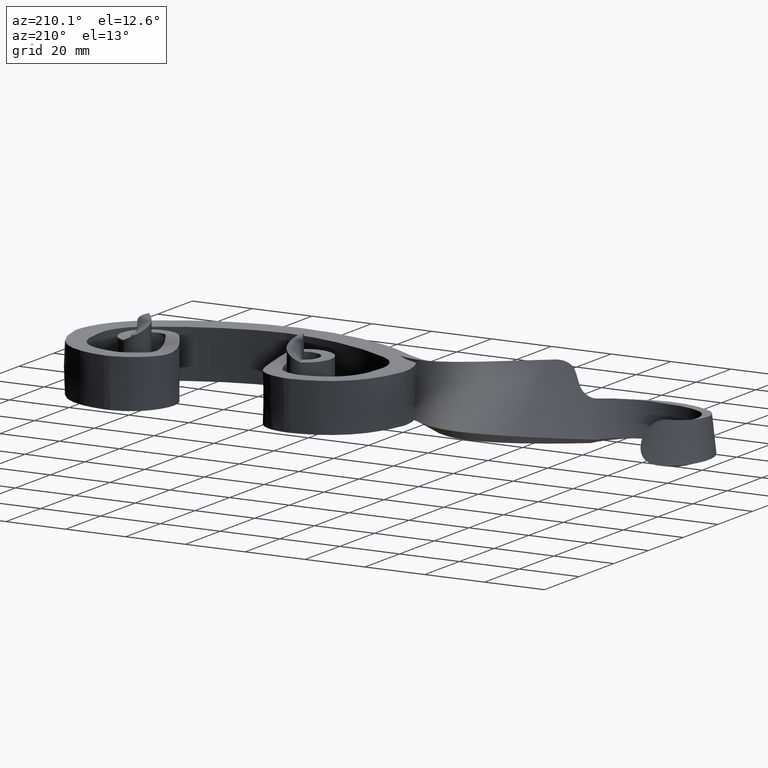
[diagram: clean part render]
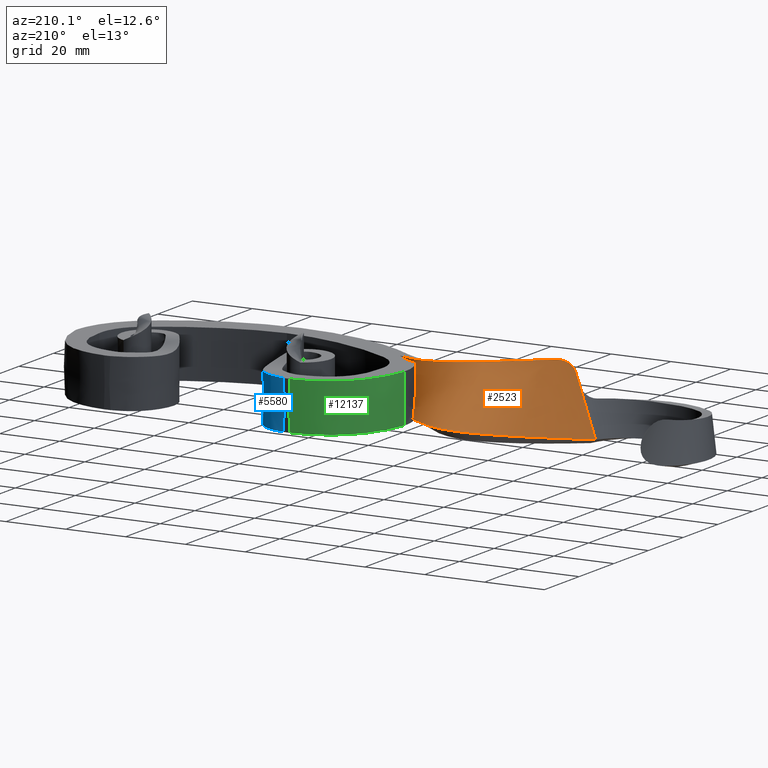
[diagram: same view with three faces highlighted in distinct colors, each labeled with its STEP entity id]
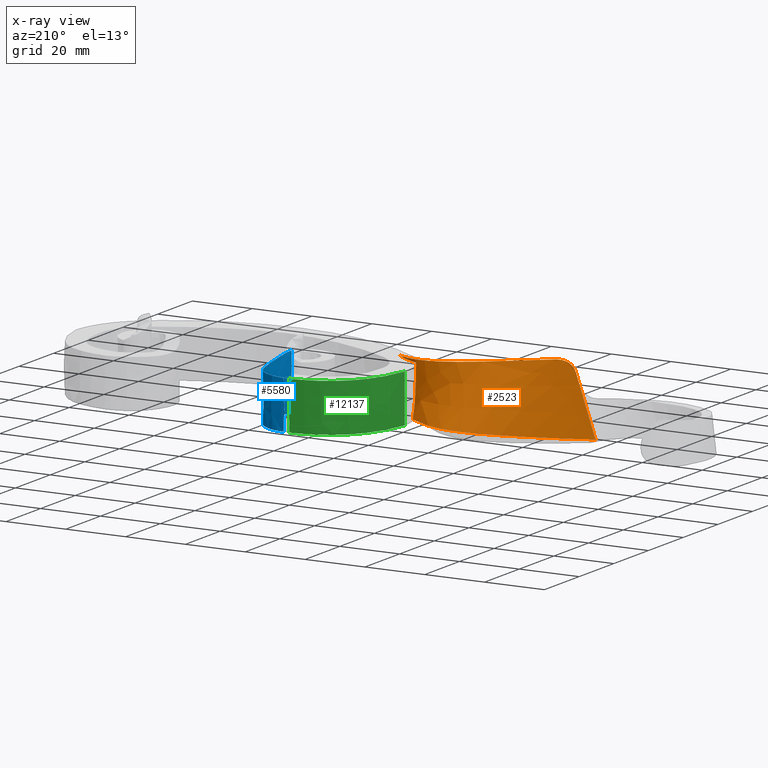
[diagram: x-ray of the same camera — body ghosted, the three highlighted faces saturated]
A machine part, auxiliary view with three faces highlighted in distinct colors.
The next image is the same camera in x-ray (body ghosted, the three faces saturated) — at least one of them is partly hidden behind the body in this view.
Their STEP definitions:

[orange] entity #2523 — the highlighted face is a freeform B-spline surface patch.
#124 = CARTESIAN_POINT ( 'NONE',  ( -96.42945539798942889, -16.39351033682261516, 11.58527722436418728 ) ) ;
#229 = CARTESIAN_POINT ( 'NONE',  ( -60.30284981061817717, 4.580316353366425730, -6.944135658084808149 ) ) ;
#379 = CARTESIAN_POINT ( 'NONE',  ( -97.38119587446179537, -16.53339040501844437, 11.19078506641155890 ) ) ;
#404 = VECTOR ( 'NONE', #7878, 1000.000000000000227 ) ;
#773 = EDGE_CURVE ( 'NONE', #8386, #11443, #2545, .T. ) ;
#813 = LINE ( 'NONE', #6575, #404 ) ;
#850 = CARTESIAN_POINT ( 'NONE',  ( -46.73785010216804636, -7.966515708669909657, -7.952089162686259094 ) ) ;
#1070 = CARTESIAN_POINT ( 'NONE',  ( -43.20000000000004547, -12.59999999999998188, 2.666666666666666963 ) ) ;
#1131 = CARTESIAN_POINT ( 'NONE',  ( -48.87190978856628476, -8.409467053666780600, 7.999999999999991118 ) ) ;
#1350 = ORIENTED_EDGE ( 'NONE', *, *, #13429, .T. ) ;
#1369 = CARTESIAN_POINT ( 'NONE',  ( -99.81559130728024343, -16.41421027396264165, 8.798950498308142798 ) ) ;
#1937 = CARTESIAN_POINT ( 'NONE',  ( -48.16334773916194223, -8.270553947581591459, 8.575249176435139731 ) ) ;
#2003 = B_SPLINE_CURVE_WITH_KNOTS ( 'NONE', 3,
 ( #6149, #2507, #8783, #1131, #11198, #3780 ),
 .UNSPECIFIED., .F., .F.,
 ( 4, 2, 4 ),
 ( 0.000000000000000000, 0.005267979673986252116, 0.01053595934797250423 ),
 .UNSPECIFIED. ) ;
#2122 = CARTESIAN_POINT ( 'NONE',  ( -43.20000000000004547, -12.59999999999998188, 8.000000000000001776 ) ) ;
#2178 = CARTESIAN_POINT ( 'NONE',  ( -47.21301598116602349, -8.067861788307137516, -2.442976382979125116 ) ) ;
#2196 = CARTESIAN_POINT ( 'NONE',  ( -52.01960458180641211, -6.826013384664912031, 8.000000000000001776 ) ) ;
#2229 = CARTESIAN_POINT ( 'NONE',  ( -103.5798565077442106, -14.51986774259186141, 1.500000000000005551 ) ) ;
#2237 = CARTESIAN_POINT ( 'NONE',  ( -59.77630384729079083, -2.689953150725865161, 9.711924247133840282 ) ) ;
#2255 = CARTESIAN_POINT ( 'NONE',  ( -52.16700212521642754, -6.550999182250500041, 6.635586703369498629 ) ) ;
#2307 = CARTESIAN_POINT ( 'NONE',  ( -53.23895162014624560, -4.208822906094227712, -1.341556095495149981 ) ) ;
#2340 = CARTESIAN_POINT ( 'NONE',  ( -79.68433725574115556, 11.95888866600640377, 0.8680365620560641648 ) ) ;
#2507 = CARTESIAN_POINT ( 'NONE',  ( -44.54270331952313455, -11.42878212614214739, 7.999999999999998224 ) ) ;
#2523 = ADVANCED_FACE ( 'NONE', ( #15369 ), #7280, .T. ) ;
#2545 = B_SPLINE_CURVE_WITH_KNOTS ( 'NONE', 3,
 ( #9547, #5681, #13256, #8201, #1937, #11833 ),
 .UNSPECIFIED., .F., .F.,
 ( 4, 1, 1, 4 ),
 ( 0.1027887074695420649, 0.4648624492864277258, 0.7523890925903812255, 1.000000000000000222 ),
 .UNSPECIFIED. ) ;
#3265 = VECTOR ( 'NONE', #6341, 1000.000000000000000 ) ;
#3403 = CARTESIAN_POINT ( 'NONE',  ( -105.4408257040114734, -13.58334682540844796, -2.108439182435152492 ) ) ;
#3568 = CARTESIAN_POINT ( 'NONE',  ( -99.13469418647991915, 2.436168240074292335, -7.261762458051583380 ) ) ;
#3581 = CARTESIAN_POINT ( 'NONE',  ( -53.44210677558404399, -3.685375864040905114, -2.619153823009113147 ) ) ;
#3662 = LINE ( 'NONE', #2229, #3265 ) ;
#3780 = CARTESIAN_POINT ( 'NONE',  ( -52.01960458180641211, -6.826013384664912031, 8.000000000000001776 ) ) ;
#4180 = CARTESIAN_POINT ( 'NONE',  ( -54.51115490866757796, -0.8575813848620177371, -7.486440096859543480 ) ) ;
#4183 = CARTESIAN_POINT ( 'NONE',  ( -94.42956560075336370, -15.95869601045208164, 11.94362855188764172 ) ) ;
#4667 = CARTESIAN_POINT ( 'NONE',  ( -54.37468783274965745, -1.232177667856706238, -7.840201177061357996 ) ) ;
#4838 = CARTESIAN_POINT ( 'NONE',  ( -101.7188873114768768, -15.45638865977524823, 5.108439182435162706 ) ) ;
#4888 = CARTESIAN_POINT ( 'NONE',  ( -79.50995481505974283, 0.1631575072818398087, 5.724260418491499358 ) ) ;
#5025 = EDGE_CURVE ( 'NONE', #14144, #15928, #9477, .T. ) ;
#5050 = B_SPLINE_CURVE_WITH_KNOTS ( 'NONE', 3,
 ( #14160, #4180, #229, #14109, #12914, #11493 ),
 .UNSPECIFIED., .F., .F.,
 ( 4, 1, 1, 4 ),
 ( 0.2326226089176657019, 0.2476109074096188023, 0.5351375507135722742, 1.000000000000000000 ),
 .UNSPECIFIED. ) ;
#5450 = CARTESIAN_POINT ( 'NONE',  ( -95.43056932623073862, -16.19579900374900916, 11.82267192924704169 ) ) ;
#5501 = CARTESIAN_POINT ( 'NONE',  ( -98.52157530770016081, -16.60876605946225837, 10.40742702793063579 ) ) ;
#5508 = EDGE_LOOP ( 'NONE', ( #6316, #11978, #13876, #1350, #7565, #9035, #14557 ) ) ;
#5681 = CARTESIAN_POINT ( 'NONE',  ( -87.41424391914146952, -13.58663449085724118, 11.36713642963850113 ) ) ;
#5980 = CARTESIAN_POINT ( 'NONE',  ( -79.33557237437835852, -11.63257365144272626, 10.58048427492693655 ) ) ;
#6033 = CARTESIAN_POINT ( 'NONE',  ( -96.27033501295898077, -3.183361264182539951, -0.9571267822595679320 ) ) ;
#6049 = CARTESIAN_POINT ( 'NONE',  ( -52.32554538642312281, -6.243397489025960923, 5.281287806678254704 ) ) ;
#6084 = CARTESIAN_POINT ( 'NONE',  ( -79.85871969642259671, 23.75461982473096612, -3.988187294379372361 ) ) ;
#6149 = CARTESIAN_POINT ( 'NONE',  ( -43.20000000000004547, -12.59999999999998188, 8.000000000000001776 ) ) ;
#6316 = ORIENTED_EDGE ( 'NONE', *, *, #9961, .F. ) ;
#6341 = DIRECTION ( 'NONE',  ( -0.4466326071041515910, 0.2247650201240159185, -0.8660254037844382635 ) ) ;
#6575 = CARTESIAN_POINT ( 'NONE',  ( -97.99694891894228022, -17.32943049414204495, 12.32531754730547746 ) ) ;
#6712 = CARTESIAN_POINT ( 'NONE',  ( -93.76571213650090897, -15.77140740652166429, 11.94134714664680530 ) ) ;
#6767 = CARTESIAN_POINT ( 'NONE',  ( -99.33972898970260701, -16.53935132552984655, 9.509243000274341995 ) ) ;
#7280 = B_SPLINE_SURFACE_WITH_KNOTS ( 'NONE', 3, 3, ( 
 ( #2122, #13592, #2237, #5980, #15953, #8613 ),
 ( #1070, #10930, #11026, #4888, #9887, #4838 ),
 ( #13541, #2178, #9788, #2340, #6033, #3403 ),
 ( #14749, #850, #4667, #6084, #3568, #8445 ) ),
 .UNSPECIFIED., .F., .F., .F.,
 ( 4, 4 ),
 ( 4, 1, 1, 4 ),
 ( 0.000000000000000000, 1.000000000000000000 ),
 ( 0.000000000000000000, 0.2476109074096188023, 0.5351375507135722742, 1.000000000000000000 ),
 .UNSPECIFIED. ) ;
#7357 = CARTESIAN_POINT ( 'NONE',  ( -52.66733715304216901, -5.535800705549701384, 2.600488850753574166 ) ) ;
#7462 = CARTESIAN_POINT ( 'NONE',  ( -54.22862303936197748, -1.122450745119980775, -7.511871344169120057 ) ) ;
#7565 = ORIENTED_EDGE ( 'NONE', *, *, #5025, .T. ) ;
#7868 = CARTESIAN_POINT ( 'NONE',  ( -43.20000000000004547, -12.59999999999998188, 8.000000000000001776 ) ) ;
#7878 = DIRECTION ( 'NONE',  ( -0.4466326071041515910, 0.2247650201240159185, -0.8660254037844381525 ) ) ;
#7962 = CARTESIAN_POINT ( 'NONE',  ( -93.10921384712040094, -15.54558565433239536, 11.88199577456095746 ) ) ;
#8013 = CARTESIAN_POINT ( 'NONE',  ( -97.68781268915081739, -16.56600916673594526, 11.01929040283303785 ) ) ;
#8073 = CARTESIAN_POINT ( 'NONE',  ( -99.63908597995580863, -16.47430482085297854, 9.091003751560684520 ) ) ;
#8201 = CARTESIAN_POINT ( 'NONE',  ( -59.77630384729079083, -2.689953150725865161, 9.711924247133840282 ) ) ;
#8239 = VERTEX_POINT ( 'NONE', #10474 ) ;
#8363 = CARTESIAN_POINT ( 'NONE',  ( -99.97185944921960754, -16.33556932498339620, 8.495944899144340923 ) ) ;
#8386 = VERTEX_POINT ( 'NONE', #8441 ) ;
#8441 = CARTESIAN_POINT ( 'NONE',  ( -93.10921384712040094, -15.54558565433239536, 11.88199577456095746 ) ) ;
#8445 = CARTESIAN_POINT ( 'NONE',  ( -109.1627640965460699, -11.71030499104165123, -9.325317547305468580 ) ) ;
#8613 = CARTESIAN_POINT ( 'NONE',  ( -97.99694891894228022, -17.32943049414204495, 12.32531754730547568 ) ) ;
#8626 = CARTESIAN_POINT ( 'NONE',  ( -54.04687592134685303, -1.842298294909350043, -6.323743699497341275 ) ) ;
#8660 = EDGE_CURVE ( 'NONE', #15928, #10676, #5050, .T. ) ;
#8783 = CARTESIAN_POINT ( 'NONE',  ( -45.94134815560607166, -10.34940871799076412, 7.999999999999992895 ) ) ;
#8871 = VERTEX_POINT ( 'NONE', #8363 ) ;
#8926 = CARTESIAN_POINT ( 'NONE',  ( -99.01035676908146854, -16.58364999050104416, 9.910097603880684503 ) ) ;
#9035 = ORIENTED_EDGE ( 'NONE', *, *, #8660, .T. ) ;
#9243 = CARTESIAN_POINT ( 'NONE',  ( -96.75265606500921933, -16.44707461682099847, 11.47293152855146126 ) ) ;
#9363 = CARTESIAN_POINT ( 'NONE',  ( -98.25637185349630442, -16.60341919721172843, 10.62813686510819799 ) ) ;
#9477 = B_SPLINE_CURVE_WITH_KNOTS ( 'NONE', 3,
 ( #2196, #2255, #6049, #7357, #14825, #2307, #3581, #16130, #8626, #7462 ),
 .UNSPECIFIED., .F., .F.,
 ( 4, 2, 2, 2, 4 ),
 ( 1.984394192489694638E-15, 0.004190384079317669742, 0.008380768158633356696, 0.01257115223794904278, 0.01676153631726472887 ),
 .UNSPECIFIED. ) ;
#9547 = CARTESIAN_POINT ( 'NONE',  ( -93.10921384712040094, -15.54558565433239536, 11.88199577456095746 ) ) ;
#9788 = CARTESIAN_POINT ( 'NONE',  ( -56.17522650426337094, -1.718102828813093286, -1.989492702329626939 ) ) ;
#9887 = CARTESIAN_POINT ( 'NONE',  ( -93.40597583943804239, -8.802890768439375790, 5.347508893532447516 ) ) ;
#9961 = EDGE_CURVE ( 'NONE', #8871, #8239, #813, .T. ) ;
#10197 = CARTESIAN_POINT ( 'NONE',  ( -95.76777578725202034, -16.26783290341005284, 11.76049916149719543 ) ) ;
#10474 = CARTESIAN_POINT ( 'NONE',  ( -101.5476473601984679, -15.54256407662330020, 5.440475280093712840 ) ) ;
#10596 = EDGE_CURVE ( 'NONE', #8871, #8386, #11794, .T. ) ;
#10676 = VERTEX_POINT ( 'NONE', #13900 ) ;
#10930 = CARTESIAN_POINT ( 'NONE',  ( -47.68818186016397931, -8.169207867944363599, 3.066136396728007529 ) ) ;
#11026 = CARTESIAN_POINT ( 'NONE',  ( -57.97576517577709154, -2.204027989769480111, 3.861215772402106339 ) ) ;
#11198 = CARTESIAN_POINT ( 'NONE',  ( -50.40363320800514657, -7.548581311508728575, 7.999999999999992895 ) ) ;
#11436 = CARTESIAN_POINT ( 'NONE',  ( -98.89145496435713767, -16.59298604828457968, 10.03938429272467658 ) ) ;
#11443 = VERTEX_POINT ( 'NONE', #7868 ) ;
#11493 = CARTESIAN_POINT ( 'NONE',  ( -109.1627640965460984, -11.71030499104166367, -9.325317547305472132 ) ) ;
#11794 = B_SPLINE_CURVE_WITH_KNOTS ( 'NONE', 3,
 ( #15474, #1369, #8073, #6767, #13076, #8926, #11436, #5501, #9363, #8013, #379, #9243, #124, #10197, #5450, #4183, #6712, #7962 ),
 .UNSPECIFIED., .F., .F.,
 ( 4, 2, 2, 2, 2, 2, 2, 2, 4 ),
 ( 0.000000000000000000, 0.001036697543149801880, 0.001555046314724700760, 0.002073395086299599857, 0.003110092629449397184, 0.004146790172599194510, 0.005183487715748992704, 0.006220185258898790898, 0.008293580345198347387 ),
 .UNSPECIFIED. ) ;
#11833 = CARTESIAN_POINT ( 'NONE',  ( -43.20000000000004547, -12.59999999999998188, 8.000000000000001776 ) ) ;
#11978 = ORIENTED_EDGE ( 'NONE', *, *, #10596, .T. ) ;
#12100 = CARTESIAN_POINT ( 'NONE',  ( -52.01960458180641211, -6.826013384664912031, 8.000000000000001776 ) ) ;
#12914 = CARTESIAN_POINT ( 'NONE',  ( -99.13469418647991915, 2.436168240074292335, -7.261762458051583380 ) ) ;
#13076 = CARTESIAN_POINT ( 'NONE',  ( -99.23415053166914390, -16.55683377843816118, 9.645333910594430904 ) ) ;
#13205 = CARTESIAN_POINT ( 'NONE',  ( -54.22862303936197748, -1.122450745119980775, -7.511871344169120057 ) ) ;
#13256 = CARTESIAN_POINT ( 'NONE',  ( -77.32510044342933497, -10.71337324878341057, 10.49120611231037437 ) ) ;
#13429 = EDGE_CURVE ( 'NONE', #11443, #14144, #2003, .T. ) ;
#13541 = CARTESIAN_POINT ( 'NONE',  ( -43.20000000000004547, -12.59999999999998188, -2.666666666666666963 ) ) ;
#13592 = CARTESIAN_POINT ( 'NONE',  ( -48.16334773916194223, -8.270553947581591459, 8.575249176435139731 ) ) ;
#13750 = EDGE_CURVE ( 'NONE', #8239, #10676, #3662, .T. ) ;
#13876 = ORIENTED_EDGE ( 'NONE', *, *, #773, .T. ) ;
#13900 = CARTESIAN_POINT ( 'NONE',  ( -109.1627640965460984, -11.71030499104166367, -9.325317547305472132 ) ) ;
#14109 = CARTESIAN_POINT ( 'NONE',  ( -79.85871969642259671, 23.75461982473096612, -3.988187294379372361 ) ) ;
#14144 = VERTEX_POINT ( 'NONE', #12100 ) ;
#14160 = CARTESIAN_POINT ( 'NONE',  ( -54.22862303936197748, -1.122450745119980775, -7.511871344169120057 ) ) ;
#14557 = ORIENTED_EDGE ( 'NONE', *, *, #13750, .F. ) ;
#14749 = CARTESIAN_POINT ( 'NONE',  ( -43.20000000000004547, -12.59999999999998188, -8.000000000000001776 ) ) ;
#14825 = CARTESIAN_POINT ( 'NONE',  ( -52.85093877976130727, -5.135362787510009852, 1.273434558906509251 ) ) ;
#15369 = FACE_OUTER_BOUND ( 'NONE', #5508, .T. ) ;
#15474 = CARTESIAN_POINT ( 'NONE',  ( -99.97185944921960754, -16.33556932498339620, 8.495944899144340923 ) ) ;
#15928 = VERTEX_POINT ( 'NONE', #13205 ) ;
#15953 = CARTESIAN_POINT ( 'NONE',  ( -90.54161666591708979, -14.42242027269620941, 11.65214456932445941 ) ) ;
#16130 = CARTESIAN_POINT ( 'NONE',  ( -53.84621754838912011, -2.502379390871251275, -5.110349804807713170 ) ) ;

[blue] entity #5580 — the highlighted face is a freeform B-spline surface patch.
#3 = CARTESIAN_POINT ( 'NONE',  ( -28.89290561367777599, 29.87516013554578365, 8.002349178277858854 ) ) ;
#446 = CARTESIAN_POINT ( 'NONE',  ( -18.72888882741743544, 7.699313024482549395, -4.648799922479064151 ) ) ;
#555 = CARTESIAN_POINT ( 'NONE',  ( -18.72422799175656394, 7.706171780478507927, -6.324399678902200783 ) ) ;
#781 = CARTESIAN_POINT ( 'NONE',  ( -28.97673564985209893, 29.88636905704027669, 5.333748342863563252 ) ) ;
#844 = CARTESIAN_POINT ( 'NONE',  ( -29.16876859840612468, 29.91046570912915925, 2.670001176115872621 ) ) ;
#1043 = CARTESIAN_POINT ( 'NONE',  ( -25.73471352242961174, 29.60070611171889610, 8.000000000000000000 ) ) ;
#1196 = CARTESIAN_POINT ( 'NONE',  ( -16.73961644370582746, 10.48027603781926054, -8.000000000000000000 ) ) ;
#1926 = CARTESIAN_POINT ( 'NONE',  ( -25.16537474691240206, 29.37919276685122227, 8.017726132158569996 ) ) ;
#1944 = B_SPLINE_CURVE_WITH_KNOTS ( 'NONE', 3,
 ( #12202, #1926, #8190, #9535, #2045, #1985 ),
 .UNSPECIFIED., .F., .F.,
 ( 4, 1, 1, 4 ),
 ( 0.03000514511970519063, 0.3396135403017762622, 0.6883228818374371727, 0.9428364869920384805 ),
 .UNSPECIFIED. ) ;
#1985 = CARTESIAN_POINT ( 'NONE',  ( -17.78065603302911413, 9.119035019696790201, 10.20306469098768609 ) ) ;
#2005 = CARTESIAN_POINT ( 'NONE',  ( -29.11958532612128536, 29.90443980657783740, -3.332334736020014621 ) ) ;
#2045 = CARTESIAN_POINT ( 'NONE',  ( -16.44146902834796720, 11.35381396550807764, 9.096330356002789941 ) ) ;
#2059 = CARTESIAN_POINT ( 'NONE',  ( -29.16972404292043564, 29.91060843933430391, -2.666433874542968319 ) ) ;
#2287 = B_SPLINE_CURVE_WITH_KNOTS ( 'NONE', 3,
 ( #10153, #12220, #4709, #8772 ),
 .UNSPECIFIED., .F., .F.,
 ( 4, 4 ),
 ( 6.539240269058237277E-17, 0.001875440972876722678 ),
 .UNSPECIFIED. ) ;
#2315 = CARTESIAN_POINT ( 'NONE',  ( -16.73334642952841023, 10.39224701859270006, 9.460221386473230964 ) ) ;
#2365 = CARTESIAN_POINT ( 'NONE',  ( -19.12514575358263968, 27.18585110101665592, -2.592325139773082654 ) ) ;
#2417 = CARTESIAN_POINT ( 'NONE',  ( -19.12546496711554056, 27.19033275822348017, -8.000000000000000000 ) ) ;
#2522 = CARTESIAN_POINT ( 'NONE',  ( -30.00000000000001776, 29.99999999999998934, -2.666666666666666519 ) ) ;
#3397 = CARTESIAN_POINT ( 'NONE',  ( -29.27866248391200088, 29.92368384946222548, 0.6703702990637424586 ) ) ;
#3590 = CARTESIAN_POINT ( 'NONE',  ( -18.79999999999997584, 7.600000000000019185, 11.00000000000000178 ) ) ;
#3796 = CARTESIAN_POINT ( 'NONE',  ( -25.73471352242961174, 29.60070611171889610, -2.666666666666666519 ) ) ;
#4193 = EDGE_CURVE ( 'NONE', #10246, #14311, #15528, .T. ) ;
#4315 = EDGE_LOOP ( 'NONE', ( #8690, #11974, #11142, #5811, #10045 ) ) ;
#4543 = CARTESIAN_POINT ( 'NONE',  ( -29.27892877996910315, 29.92372046292448573, -0.6666001760160731315 ) ) ;
#4602 = CARTESIAN_POINT ( 'NONE',  ( -29.24903626202534213, 29.92018577814974734, 1.337287000408350135 ) ) ;
#4709 = CARTESIAN_POINT ( 'NONE',  ( -18.41081111783132940, 8.128045733690004937, 10.63748711643142286 ) ) ;
#4962 = CARTESIAN_POINT ( 'NONE',  ( -14.83991298797691094, 15.81350858939796566, -7.999999999999998224 ) ) ;
#5580 = ADVANCED_FACE ( 'NONE', ( #10101 ), #14018, .T. ) ;
#5589 = VERTEX_POINT ( 'NONE', #3 ) ;
#5811 = ORIENTED_EDGE ( 'NONE', *, *, #11760, .T. ) ;
#5861 = CARTESIAN_POINT ( 'NONE',  ( -28.89541291717526406, 29.87562163365635826, -6.663945527120946899 ) ) ;
#6040 = EDGE_CURVE ( 'NONE', #12804, #10246, #13927, .T. ) ;
#6269 = CARTESIAN_POINT ( 'NONE',  ( -30.00000000000001776, 29.99999999999998934, 2.666666666666666519 ) ) ;
#6780 = CARTESIAN_POINT ( 'NONE',  ( -18.77518518880183862, 7.633606448762522589, 10.77026146850863775 ) ) ;
#7254 = CARTESIAN_POINT ( 'NONE',  ( -16.71631783947801964, 10.54627493894000878, -8.000000000000000000 ) ) ;
#7307 = CARTESIAN_POINT ( 'NONE',  ( -14.85740231020177582, 15.85993736794336506, -7.999999999999998224 ) ) ;
#7366 = CARTESIAN_POINT ( 'NONE',  ( -19.12482654004973881, 27.18136944380982811, 2.815349720453834692 ) ) ;
#7471 = CARTESIAN_POINT ( 'NONE',  ( -16.73752643898002290, 10.45093303141040586, -2.179926204508923160 ) ) ;
#7701 = CARTESIAN_POINT ( 'NONE',  ( -18.71966440188703729, 7.712955228803216379, -8.000000000000000000 ) ) ;
#7973 = CARTESIAN_POINT ( 'NONE',  ( -18.74667845620063034, 7.673406434936078213, 1.607958308274084702 ) ) ;
#8090 = CARTESIAN_POINT ( 'NONE',  ( -18.71966440188703729, 7.712955228803216379, -8.000000000000000000 ) ) ;
#8190 = CARTESIAN_POINT ( 'NONE',  ( -18.99604618903281050, 26.83731418698118176, 8.193337772231329197 ) ) ;
#8380 = CARTESIAN_POINT ( 'NONE',  ( -28.89569971876204590, 29.87567134763981969, -8.000000000000000000 ) ) ;
#8407 = CARTESIAN_POINT ( 'NONE',  ( -28.89569971876204590, 29.87567134763981969, -8.000000000000000000 ) ) ;
#8552 = B_SPLINE_CURVE_WITH_KNOTS ( 'NONE', 3,
 ( #8380, #5861, #12170, #2005, #2059, #9725, #4543, #3397, #4602, #844, #15842, #781, #9618, #10863 ),
 .UNSPECIFIED., .F., .F.,
 ( 4, 2, 2, 2, 2, 2, 4 ),
 ( 0.000000000000000000, 0.004008026103801297889, 0.006012039155701947267, 0.008016052207602595778, 0.01002006525950324516, 0.01202407831140389453, 0.01603210441520518809 ),
 .UNSPECIFIED. ) ;
#8586 = CARTESIAN_POINT ( 'NONE',  ( -30.00000000000001776, 29.99999999999998934, 8.000000000000000000 ) ) ;
#8690 = ORIENTED_EDGE ( 'NONE', *, *, #13832, .T. ) ;
#8772 = CARTESIAN_POINT ( 'NONE',  ( -18.77518518880183862, 7.633606448762522589, 10.77026146850863775 ) ) ;
#9198 = CARTESIAN_POINT ( 'NONE',  ( -18.73365300167769831, 7.692375077176694553, -2.973200792281892380 ) ) ;
#9535 = CARTESIAN_POINT ( 'NONE',  ( -15.08793802824340702, 16.50663845218400283, 7.290191025742285724 ) ) ;
#9618 = CARTESIAN_POINT ( 'NONE',  ( -28.89308528147665101, 29.87519575407941019, 6.666193715870911696 ) ) ;
#9725 = CARTESIAN_POINT ( 'NONE',  ( -29.24953408660301335, 29.92025527291977838, -1.333576529148495116 ) ) ;
#9858 = CARTESIAN_POINT ( 'NONE',  ( -14.84320367104267469, 15.85970874057282565, 7.233633983468592987 ) ) ;
#9919 = CARTESIAN_POINT ( 'NONE',  ( -18.77518518880183862, 7.633606448762522589, 10.77026146850863775 ) ) ;
#9965 = CARTESIAN_POINT ( 'NONE',  ( -30.00000000000001776, 29.99999999999998934, -8.000000000000000000 ) ) ;
#10045 = ORIENTED_EDGE ( 'NONE', *, *, #14056, .T. ) ;
#10101 = FACE_OUTER_BOUND ( 'NONE', #4315, .T. ) ;
#10153 = CARTESIAN_POINT ( 'NONE',  ( -17.78065603302911413, 9.119035019696790201, 10.20306469098768609 ) ) ;
#10246 = VERTEX_POINT ( 'NONE', #7701 ) ;
#10863 = CARTESIAN_POINT ( 'NONE',  ( -28.89290561367777599, 29.87516013554578365, 8.002349178277858854 ) ) ;
#11142 = ORIENTED_EDGE ( 'NONE', *, *, #4193, .T. ) ;
#11161 = CARTESIAN_POINT ( 'NONE',  ( -18.79999999999997584, 7.600000000000019185, 4.666666666666666075 ) ) ;
#11165 = CARTESIAN_POINT ( 'NONE',  ( -28.89569971876204590, 29.87567134763981969, -8.000000000000000000 ) ) ;
#11760 = EDGE_CURVE ( 'NONE', #14311, #5589, #8552, .T. ) ;
#11974 = ORIENTED_EDGE ( 'NONE', *, *, #6040, .T. ) ;
#12131 = VERTEX_POINT ( 'NONE', #13071 ) ;
#12170 = CARTESIAN_POINT ( 'NONE',  ( -28.97863412323264498, 29.88668967256060327, -5.330522377625779740 ) ) ;
#12202 = CARTESIAN_POINT ( 'NONE',  ( -28.89290561367777599, 29.87516013554578365, 8.002349178277858854 ) ) ;
#12220 = CARTESIAN_POINT ( 'NONE',  ( -18.07814413397997910, 8.622599389489431942, 10.44891556500372332 ) ) ;
#12356 = CARTESIAN_POINT ( 'NONE',  ( -25.16689536574065755, 29.38085405141531936, -8.000000000000000000 ) ) ;
#12417 = CARTESIAN_POINT ( 'NONE',  ( -19.12450732651683794, 27.17688778660300386, 8.223024580680750262 ) ) ;
#12574 = CARTESIAN_POINT ( 'NONE',  ( -14.84210677668742662, 15.84430869018120802, 2.155755988979062732 ) ) ;
#12804 = VERTEX_POINT ( 'NONE', #9919 ) ;
#13071 = CARTESIAN_POINT ( 'NONE',  ( -17.78065603302911413, 9.119035019696790201, 10.20306469098768609 ) ) ;
#13461 = CARTESIAN_POINT ( 'NONE',  ( -18.71966440188703729, 7.712955228803216379, -8.000000000000000000 ) ) ;
#13565 = CARTESIAN_POINT ( 'NONE',  ( -16.73543643425421479, 10.42159002500155296, 3.640147590982153680 ) ) ;
#13781 = CARTESIAN_POINT ( 'NONE',  ( -18.79999999999997584, 7.600000000000019185, -1.666666666666666963 ) ) ;
#13832 = EDGE_CURVE ( 'NONE', #12131, #12804, #2287, .T. ) ;
#13927 = B_SPLINE_CURVE_WITH_KNOTS ( 'NONE', 3,
 ( #6780, #15486, #7973, #9198, #446, #555, #8090 ),
 .UNSPECIFIED., .F., .F.,
 ( 4, 3, 4 ),
 ( 4.399322008250526108E-15, 0.01374365066451223132, 0.01877051135228064577 ),
 .UNSPECIFIED. ) ;
#14018 = B_SPLINE_SURFACE_WITH_KNOTS ( 'NONE', 3, 3, ( 
 ( #9965, #14940, #2417, #4962, #1196, #16245 ),
 ( #2522, #3796, #2365, #14991, #7471, #13781 ),
 ( #6269, #14835, #7366, #12574, #13565, #11161 ),
 ( #8586, #1043, #12417, #9858, #2315, #3590 ) ),
 .UNSPECIFIED., .F., .F., .F.,
 ( 4, 4 ),
 ( 4, 1, 1, 4 ),
 ( 0.000000000000000000, 1.000000000000000000 ),
 ( 0.000000000000000000, 0.3396135403017763177, 0.6883228818374371727, 1.000000000000000000 ),
 .UNSPECIFIED. ) ;
#14056 = EDGE_CURVE ( 'NONE', #5589, #12131, #1944, .T. ) ;
#14311 = VERTEX_POINT ( 'NONE', #11165 ) ;
#14835 = CARTESIAN_POINT ( 'NONE',  ( -25.73471352242961174, 29.60070611171889610, 2.666666666666666519 ) ) ;
#14940 = CARTESIAN_POINT ( 'NONE',  ( -25.73471352242961174, 29.60070611171889610, -8.000000000000000000 ) ) ;
#14991 = CARTESIAN_POINT ( 'NONE',  ( -14.84100988233216611, 15.82890863978958862, -2.922122005510467080 ) ) ;
#15486 = CARTESIAN_POINT ( 'NONE',  ( -18.76047393180286349, 7.653847113937437108, 6.189112914836611523 ) ) ;
#15528 = B_SPLINE_CURVE_WITH_KNOTS ( 'NONE', 3,
 ( #13461, #7254, #7307, #16085, #12356, #8407 ),
 .UNSPECIFIED., .F., .F.,
 ( 4, 1, 1, 4 ),
 ( 0.004080996406064379967, 0.3116771181625628273, 0.6603864596982236268, 0.9700719320905434317 ),
 .UNSPECIFIED. ) ;
#15842 = CARTESIAN_POINT ( 'NONE',  ( -29.11840199258080375, 29.90425656943150656, 3.335813141421527295 ) ) ;
#16085 = CARTESIAN_POINT ( 'NONE',  ( -18.99720667645437544, 26.84984639190492217, -8.000000000000000000 ) ) ;
#16245 = CARTESIAN_POINT ( 'NONE',  ( -18.79999999999997584, 7.600000000000019185, -8.000000000000000000 ) ) ;

[green] entity #12137 — the highlighted face is a freeform B-spline surface patch.
#377 = CARTESIAN_POINT ( 'NONE',  ( -54.59760100922991910, 8.024632743845540261, -7.282452692580489995 ) ) ;
#429 = CARTESIAN_POINT ( 'NONE',  ( -34.13652959836469591, 29.76650607956952399, -7.367439544539279517 ) ) ;
#479 = CARTESIAN_POINT ( 'NONE',  ( -30.75792891432216081, 29.98851790015434560, 0.6684015041343437380 ) ) ;
#533 = CARTESIAN_POINT ( 'NONE',  ( -30.87340032256908628, 29.96771172418537077, -3.332693009769530423 ) ) ;
#537 = CARTESIAN_POINT ( 'NONE',  ( -55.00000000000000711, 5.000000000000188294, 7.270833333333333037 ) ) ;
#593 = CARTESIAN_POINT ( 'NONE',  ( -54.64678812798118912, 7.979582318078227487, 5.919732413750067757 ) ) ;
#649 = CARTESIAN_POINT ( 'NONE',  ( -53.90105652276683657, 13.94662946288037908, 1.994991029154004503 ) ) ;
#653 = CARTESIAN_POINT ( 'NONE',  ( -54.59758995820636329, 8.024643794869113833, -8.000000000000000000 ) ) ;
#706 = CARTESIAN_POINT ( 'NONE',  ( -45.44609205511893890, 24.91001597633713516, -0.6662417610375662713 ) ) ;
#761 = CARTESIAN_POINT ( 'NONE',  ( -50.33067845724951894, 20.06311271722398359, 0.6676295374042895414 ) ) ;
#1045 = CARTESIAN_POINT ( 'NONE',  ( -40.35571405489956476, 28.34440473721910791, 8.000000000000000000 ) ) ;
#1639 = CARTESIAN_POINT ( 'NONE',  ( -31.02506454445730810, 29.92939817130125846, 8.000000000000000000 ) ) ;
#1690 = CARTESIAN_POINT ( 'NONE',  ( -54.64678792043872591, 7.979582525620766198, -5.919732413749937194 ) ) ;
#1806 = CARTESIAN_POINT ( 'NONE',  ( -34.06774596881952277, 29.79565786596320720, -6.075830464437451006 ) ) ;
#1865 = CARTESIAN_POINT ( 'NONE',  ( -30.97070432843670673, 29.94553608292712710, 5.332715867823352163 ) ) ;
#1869 = CARTESIAN_POINT ( 'NONE',  ( -45.59128443759183114, 24.82665960185080678, 7.367610343583080201 ) ) ;
#1901 = VERTEX_POINT ( 'NONE', #5414 ) ;
#1924 = CARTESIAN_POINT ( 'NONE',  ( -54.01344462302927951, 13.87036015361831431, -0.6706110625357109001 ) ) ;
#1927 = CARTESIAN_POINT ( 'NONE',  ( -49.90959665434134251, 20.28062515591745196, -8.000000000000000000 ) ) ;
#1980 = CARTESIAN_POINT ( 'NONE',  ( -31.02419311199154350, 29.92946926477331360, -8.000000000000000000 ) ) ;
#1983 = CARTESIAN_POINT ( 'NONE',  ( -50.33067842165642247, 20.06311275281707296, -0.6676295374042866548 ) ) ;
#2043 = CARTESIAN_POINT ( 'NONE',  ( -33.86127900163893401, 29.88322930368931196, 4.061488315035209240 ) ) ;
#2047 = CARTESIAN_POINT ( 'NONE',  ( -53.11434259198252761, 14.48051185666181517, -8.000000000000000000 ) ) ;
#2100 = CARTESIAN_POINT ( 'NONE',  ( -34.13652959836468881, 29.76650607956950978, 7.367439544539276852 ) ) ;
#2148 = CARTESIAN_POINT ( 'NONE',  ( -54.59758995820636329, 8.024643794869113833, 8.000000000000000000 ) ) ;
#2907 = CARTESIAN_POINT ( 'NONE',  ( -53.11435898646525544, 14.48049546217905537, -7.313670097584239471 ) ) ;
#3082 = CARTESIAN_POINT ( 'NONE',  ( -31.02506454445730810, 29.92939817130125846, 8.000000000000000000 ) ) ;
#3084 = CARTESIAN_POINT ( 'NONE',  ( -33.65479560640089574, 29.97081716947298347, -2.018469919835423010 ) ) ;
#3146 = CARTESIAN_POINT ( 'NONE',  ( -45.46424131793643397, 24.89959621451803784, -2.017504428501514901 ) ) ;
#3150 = CARTESIAN_POINT ( 'NONE',  ( -40.57441793135537011, 28.19745903484332317, -8.000000000000000000 ) ) ;
#3201 = CARTESIAN_POINT ( 'NONE',  ( -54.99999999999995737, 5.000000000000182965, 3.909930971775952280 ) ) ;
#3262 = CARTESIAN_POINT ( 'NONE',  ( -54.01344523881883930, 13.87035953782875985, 0.6706110625357131205 ) ) ;
#3266 = B_SPLINE_CURVE_WITH_KNOTS ( 'NONE', 3,
 ( #3082, #14378, #1865, #10562, #6988, #13118, #479, #11923, #14267, #8066, #533, #8124, #4405, #1980 ),
 .UNSPECIFIED., .F., .F.,
 ( 4, 2, 2, 2, 2, 2, 4 ),
 ( -5.999999999358544060E-08, 0.004001610955362733431, 0.006002446433044096932, 0.008003281910725459566, 0.01000411738840682220, 0.01200495286608818657, 0.01600662382145091531 ),
 .UNSPECIFIED. ) ;
#3320 = CARTESIAN_POINT ( 'NONE',  ( -53.22677987569324642, 14.40419336395148342, 5.987923243214182456 ) ) ;
#3322 = CARTESIAN_POINT ( 'NONE',  ( -34.72339498551249903, 29.62772075184603793, -8.000000000000000000 ) ) ;
#3587 = DIRECTION ( 'NONE',  ( 0.000000000000000000, 0.000000000000000000, -1.000000000000000000 ) ) ;
#4233 = CARTESIAN_POINT ( 'NONE',  ( -53.22677956779853048, 14.40419367184627752, -5.987923243213897351 ) ) ;
#4236 = FACE_OUTER_BOUND ( 'NONE', #7207, .T. ) ;
#4285 = CARTESIAN_POINT ( 'NONE',  ( -49.90959760195448780, 20.28062420830429602, -7.347395731770943961 ) ) ;
#4343 = CARTESIAN_POINT ( 'NONE',  ( -45.51868683490689449, 24.86833920054241176, -4.056689275765038794 ) ) ;
#4405 = CARTESIAN_POINT ( 'NONE',  ( -31.02430387905092246, 29.92945300999106450, -6.666109686243867571 ) ) ;
#4407 = CARTESIAN_POINT ( 'NONE',  ( -40.35572756215852053, 28.34439122996013083, 7.374652903803301740 ) ) ;
#4462 = CARTESIAN_POINT ( 'NONE',  ( -50.27804318072096379, 20.09030182322574376, 2.008897406266719976 ) ) ;
#4525 = CARTESIAN_POINT ( 'NONE',  ( -33.58598093278768459, 29.99999999993475797, -0.6677790239896618241 ) ) ;
#4581 = CARTESIAN_POINT ( 'NONE',  ( -49.96223473811629390, 20.25343324266932754, 6.036644002934430375 ) ) ;
#4734 = CARTESIAN_POINT ( 'NONE',  ( -40.57460631973754772, 28.19733245792303222, 8.000000000000000000 ) ) ;
#5205 = EDGE_CURVE ( 'NONE', #8789, #1901, #3266, .T. ) ;
#5347 = CARTESIAN_POINT ( 'NONE',  ( -53.11434259198252761, 14.48051185666181517, -8.000000000000000000 ) ) ;
#5414 = CARTESIAN_POINT ( 'NONE',  ( -31.02419311199154350, 29.92946926477331360, -8.000000000000000000 ) ) ;
#5447 = CARTESIAN_POINT ( 'NONE',  ( -55.00000000000000711, 5.000000000000189182, -7.270833333333332149 ) ) ;
#5613 = CARTESIAN_POINT ( 'NONE',  ( -53.56392561640863903, 14.17540399623719871, -3.988494900225606266 ) ) ;
#5666 = CARTESIAN_POINT ( 'NONE',  ( -30.00000000000002132, 29.99999999999999289, -0.6666666666666654084 ) ) ;
#5725 = CARTESIAN_POINT ( 'NONE',  ( -54.99999999999991473, 5.000000000000179412, -3.909930971775956277 ) ) ;
#5785 = CARTESIAN_POINT ( 'NONE',  ( -39.75093674914489839, 28.60702629282934595, 2.021406627897317509 ) ) ;
#5842 = CARTESIAN_POINT ( 'NONE',  ( -30.00000000000001776, 29.99999999999999289, 7.361979166666666963 ) ) ;
#5992 = CARTESIAN_POINT ( 'NONE',  ( -34.72389738376303825, 29.62759793892609750, 8.000000000000000000 ) ) ;
#6010 = CARTESIAN_POINT ( 'NONE',  ( -55.00000000000000711, 5.000000000000189182, 8.000000000000000000 ) ) ;
#6653 = CARTESIAN_POINT ( 'NONE',  ( -45.59128540938324647, 24.82665863005939499, -8.000000000000000000 ) ) ;
#6707 = CARTESIAN_POINT ( 'NONE',  ( -45.59128443759183114, 24.82665960185080678, -7.367610343583078425 ) ) ;
#6764 = CARTESIAN_POINT ( 'NONE',  ( -34.13651314958730154, 29.76652252834691126, -8.000000000000000000 ) ) ;
#6818 = CARTESIAN_POINT ( 'NONE',  ( -54.59760100922993331, 8.024632743845538485, 7.282452692580489106 ) ) ;
#6869 = CARTESIAN_POINT ( 'NONE',  ( -33.65479560640095968, 29.97081716947301899, 2.018469919835425230 ) ) ;
#6930 = CARTESIAN_POINT ( 'NONE',  ( -55.00000000000000711, 5.000000000000190070, -0.6666666666666654084 ) ) ;
#6988 = CARTESIAN_POINT ( 'NONE',  ( -30.83836263443772907, 29.97480365197558783, 2.667831721069231055 ) ) ;
#6990 = CARTESIAN_POINT ( 'NONE',  ( -55.00000000000000711, 5.000000000000190958, 0.6666666666666669627 ) ) ;
#7046 = CARTESIAN_POINT ( 'NONE',  ( -53.56392661706676961, 14.17540299557922445, 3.988494900226526418 ) ) ;
#7207 = EDGE_LOOP ( 'NONE', ( #11672, #9411, #10146, #14753 ) ) ;
#7457 = CARTESIAN_POINT ( 'NONE',  ( -53.11434259198252761, 14.48051185666181517, 8.000000000000000000 ) ) ;
#7904 = CARTESIAN_POINT ( 'NONE',  ( -30.00000000000002132, 29.99999999999999289, -8.000000000000000000 ) ) ;
#7957 = CARTESIAN_POINT ( 'NONE',  ( -55.00000000000008527, 5.000000000000198952, -5.884874336008462770 ) ) ;
#8009 = CARTESIAN_POINT ( 'NONE',  ( -40.26935803614426845, 28.38188136309660692, -6.085956527872976807 ) ) ;
#8066 = CARTESIAN_POINT ( 'NONE',  ( -30.83805258901520574, 29.97482803205693358, -2.666406651428822272 ) ) ;
#8068 = CARTESIAN_POINT ( 'NONE',  ( -55.00000000000001421, 5.000000000000193623, 5.884874336008464546 ) ) ;
#8124 = CARTESIAN_POINT ( 'NONE',  ( -30.97013073600629696, 29.94558212222453264, -5.331856337570537896 ) ) ;
#8128 = CARTESIAN_POINT ( 'NONE',  ( -40.01015413776674023, 28.49444708284074324, 4.070250001674725837 ) ) ;
#8187 = CARTESIAN_POINT ( 'NONE',  ( -50.12013944597577364, 20.17186704639038197, 4.030310942638127614 ) ) ;
#8244 = CARTESIAN_POINT ( 'NONE',  ( -54.94174237708234898, 7.709448226880780908, -1.979167310372856203 ) ) ;
#8304 = CARTESIAN_POINT ( 'NONE',  ( -50.12013938813696257, 20.17186710422907581, -4.030310942638121396 ) ) ;
#8789 = VERTEX_POINT ( 'NONE', #1639 ) ;
#9358 = CARTESIAN_POINT ( 'NONE',  ( -49.90959760195450201, 20.28062420830429602, 7.347395731770945737 ) ) ;
#9411 = ORIENTED_EDGE ( 'NONE', *, *, #5205, .T. ) ;
#9412 = CARTESIAN_POINT ( 'NONE',  ( -55.00000000000004263, 5.000000000000192735, 1.972066349103906546 ) ) ;
#9472 = CARTESIAN_POINT ( 'NONE',  ( -54.99090822395649525, 7.664419072990472870, -0.6690336537565099162 ) ) ;
#9478 = CARTESIAN_POINT ( 'NONE',  ( -45.59128540938324647, 24.82665863005939499, -8.000000000000000000 ) ) ;
#9533 = CARTESIAN_POINT ( 'NONE',  ( -33.86127900163899795, 29.88322930368936170, -4.061488315035214569 ) ) ;
#9598 = CARTESIAN_POINT ( 'NONE',  ( -45.51868677559235721, 24.86833925985698812, 4.056689275765044123 ) ) ;
#9699 = CARTESIAN_POINT ( 'NONE',  ( -55.00000000000000711, 5.000000000000189182, 8.000000000000000000 ) ) ;
#9704 = CARTESIAN_POINT ( 'NONE',  ( -34.13651314958730154, 29.76652252834691126, 8.000000000000000000 ) ) ;
#9869 = EDGE_CURVE ( 'NONE', #12187, #15496, #12221, .T. ) ;
#10034 = CARTESIAN_POINT ( 'NONE',  ( -55.00000000000000711, 5.000000000000189182, -8.000000000000000000 ) ) ;
#10146 = ORIENTED_EDGE ( 'NONE', *, *, #10718, .F. ) ;
#10562 = CARTESIAN_POINT ( 'NONE',  ( -30.87377281401855100, 29.96768241488902973, 3.333966808043743235 ) ) ;
#10623 = CARTESIAN_POINT ( 'NONE',  ( -30.00000000000001776, 29.99999999999998579, -6.059449330819618673 ) ) ;
#10682 = CARTESIAN_POINT ( 'NONE',  ( -34.06774596881956541, 29.79565786596323207, 6.075830464437454559 ) ) ;
#10718 = EDGE_CURVE ( 'NONE', #15496, #1901, #13169, .T. ) ;
#10742 = CARTESIAN_POINT ( 'NONE',  ( -39.66454173064224165, 28.64454191845416986, -0.6670860144787477131 ) ) ;
#10796 = CARTESIAN_POINT ( 'NONE',  ( -50.27804310953479927, 20.09030189441195802, -2.008897406266709318 ) ) ;
#10845 = CARTESIAN_POINT ( 'NONE',  ( -40.01015413776678997, 28.49444708284073968, -4.070250001674728502 ) ) ;
#11056 = CARTESIAN_POINT ( 'NONE',  ( -30.00000000000002132, 29.99999999999999289, 8.000000000000000000 ) ) ;
#11097 = CARTESIAN_POINT ( 'NONE',  ( -49.90959665434134251, 20.28062515591745196, 8.000000000000000000 ) ) ;
#11237 = EDGE_CURVE ( 'NONE', #12187, #8789, #14632, .T. ) ;
#11672 = ORIENTED_EDGE ( 'NONE', *, *, #11237, .T. ) ;
#11691 = CARTESIAN_POINT ( 'NONE',  ( -40.35572756215852763, 28.34439122996014859, -7.374652903803303516 ) ) ;
#11808 = CARTESIAN_POINT ( 'NONE',  ( -55.00000000000000711, 5.000000000000189182, -8.000000000000000000 ) ) ;
#11866 = CARTESIAN_POINT ( 'NONE',  ( -30.00000000000001421, 29.99999999999997868, -2.015132847868150723 ) ) ;
#11923 = CARTESIAN_POINT ( 'NONE',  ( -30.75783504033203997, 29.98852553760750084, -0.6666299121010574869 ) ) ;
#11925 = CARTESIAN_POINT ( 'NONE',  ( -30.00000000000005329, 30.00000000000002132, 6.059449330819617785 ) ) ;
#11982 = CARTESIAN_POINT ( 'NONE',  ( -39.75093674914484865, 28.60702629282935661, -2.021406627897312624 ) ) ;
#12036 = CARTESIAN_POINT ( 'NONE',  ( -33.58598093278767038, 29.99999999993475086, 0.6677790239896623792 ) ) ;
#12098 = CARTESIAN_POINT ( 'NONE',  ( -53.90105529118777383, 13.94663069445950931, -1.994991029152868300 ) ) ;
#12137 = ADVANCED_FACE ( 'NONE', ( #4236 ), #15220, .T. ) ;
#12187 = VERTEX_POINT ( 'NONE', #15924 ) ;
#12221 = LINE ( 'NONE', #9699, #13599 ) ;
#12245 = CARTESIAN_POINT ( 'NONE',  ( -45.59128540938324647, 24.82665863005939499, 8.000000000000000000 ) ) ;
#12262 = CARTESIAN_POINT ( 'NONE',  ( -45.59128540938324647, 24.82665863005939499, 8.000000000000000000 ) ) ;
#12351 = CARTESIAN_POINT ( 'NONE',  ( -31.02506454445730810, 29.92939817130125846, 8.000000000000000000 ) ) ;
#12854 = CARTESIAN_POINT ( 'NONE',  ( -54.59758995820636329, 8.024643794869113833, -8.000000000000000000 ) ) ;
#12911 = CARTESIAN_POINT ( 'NONE',  ( -55.00000000000000711, 5.000000000000189182, -8.000000000000000000 ) ) ;
#13014 = CARTESIAN_POINT ( 'NONE',  ( -49.96223472031978474, 20.25343326046588643, -6.036644002934422382 ) ) ;
#13118 = CARTESIAN_POINT ( 'NONE',  ( -30.78027739596661050, 29.98519359267006124, 1.335055004195315309 ) ) ;
#13121 = CARTESIAN_POINT ( 'NONE',  ( -39.66454173064222744, 28.64454191845416986, 0.6670860144787492674 ) ) ;
#13169 = B_SPLINE_CURVE_WITH_KNOTS ( 'NONE', 3,
 ( #11808, #653, #2047, #1927, #9478, #3150, #3322, #14386 ),
 .UNSPECIFIED., .F., .F.,
 ( 4, 1, 1, 1, 1, 4 ),
 ( 0.000000000000000000, 0.2033785708517071855, 0.4689190472344710869, 0.5327106975142505974, 0.7344595236172355435, 0.9778153222986458726 ),
 .UNSPECIFIED. ) ;
#13176 = CARTESIAN_POINT ( 'NONE',  ( -54.79427066731186358, 7.844509857699233812, -3.935511107404729980 ) ) ;
#13242 = CARTESIAN_POINT ( 'NONE',  ( -45.46424124493396590, 24.89959628752048815, 2.017504428501525116 ) ) ;
#13296 = CARTESIAN_POINT ( 'NONE',  ( -54.94174320725240790, 7.709447396710654488, 1.979167310373375344 ) ) ;
#13351 = CARTESIAN_POINT ( 'NONE',  ( -45.44609201861769066, 24.91001601283839051, 0.6662417610375691579 ) ) ;
#13468 = CARTESIAN_POINT ( 'NONE',  ( -49.90959665434134251, 20.28062515591745196, 8.000000000000000000 ) ) ;
#13599 = VECTOR ( 'NONE', #3587, 1000.000000000000000 ) ;
#14158 = CARTESIAN_POINT ( 'NONE',  ( -49.90959665434134251, 20.28062515591745196, -8.000000000000000000 ) ) ;
#14267 = CARTESIAN_POINT ( 'NONE',  ( -30.78010503956502220, 29.98520714626983263, -1.333381121345172948 ) ) ;
#14322 = CARTESIAN_POINT ( 'NONE',  ( -40.26935803614429688, 28.38188136309661402, 6.085956527872984800 ) ) ;
#14378 = CARTESIAN_POINT ( 'NONE',  ( -31.02502348437535318, 29.92939429669971219, 6.666109682183333440 ) ) ;
#14382 = CARTESIAN_POINT ( 'NONE',  ( -55.00000000000011369, 5.000000000000196287, -1.972066349103901883 ) ) ;
#14386 = CARTESIAN_POINT ( 'NONE',  ( -31.02419311199154350, 29.92946926477331360, -8.000000000000000000 ) ) ;
#14439 = CARTESIAN_POINT ( 'NONE',  ( -54.99090863904156379, 7.664418657905412324, 0.6690336537565112485 ) ) ;
#14501 = CARTESIAN_POINT ( 'NONE',  ( -45.57313330419400899, 24.83708123425030223, 6.067972501360790361 ) ) ;
#14554 = CARTESIAN_POINT ( 'NONE',  ( -30.00000000000005684, 30.00000000000002842, 2.015132847868152499 ) ) ;
#14632 = B_SPLINE_CURVE_WITH_KNOTS ( 'NONE', 3,
 ( #14975, #16078, #7457, #11097, #12245, #4734, #5992, #12351 ),
 .UNSPECIFIED., .F., .F.,
 ( 4, 1, 1, 1, 1, 4 ),
 ( 0.000000000000000000, 0.2033785708517071855, 0.4689190472344710869, 0.5327106975142505974, 0.7344595236172355435, 0.9777962127354822286 ),
 .UNSPECIFIED. ) ;
#14753 = ORIENTED_EDGE ( 'NONE', *, *, #9869, .F. ) ;
#14975 = CARTESIAN_POINT ( 'NONE',  ( -55.00000000000000711, 5.000000000000189182, 8.000000000000000000 ) ) ;
#15220 = B_SPLINE_SURFACE_WITH_KNOTS ( 'NONE', 3, 3, ( 
 ( #12911, #12854, #5347, #14158, #6653, #15421, #6764, #7904 ),
 ( #5447, #377, #2907, #4285, #6707, #11691, #429, #15471 ),
 ( #7957, #1690, #4233, #13014, #15523, #8009, #1806, #10623 ),
 ( #5725, #13176, #5613, #8304, #4343, #10845, #9533, #15819 ),
 ( #14382, #8244, #12098, #10796, #3146, #11982, #3084, #11866 ),
 ( #6930, #9472, #1924, #1983, #706, #10742, #4525, #5666 ),
 ( #6990, #14439, #3262, #761, #13351, #13121, #12036, #15760 ),
 ( #9412, #13296, #649, #4462, #13242, #5785, #6869, #14554 ),
 ( #3201, #15640, #7046, #8187, #9598, #8128, #2043, #15699 ),
 ( #8068, #593, #3320, #4581, #14501, #14322, #10682, #11925 ),
 ( #537, #6818, #15583, #9358, #1869, #4407, #2100, #5842 ),
 ( #6010, #2148, #16042, #13468, #12262, #1045, #9704, #11056 ) ),
 .UNSPECIFIED., .F., .F., .F.,
 ( 4, 1, 1, 1, 2, 1, 1, 1, 4 ),
 ( 4, 1, 1, 1, 1, 4 ),
 ( 0.6464646464646465196, 0.6906565656565657463, 0.7348484848484849730, 0.7790404040404041996, 0.8232323232323233153, 0.8674242424242424310, 0.9116161616161615466, 0.9558080808080808843, 1.000000000000000000 ),
 ( 0.000000000000000000, 0.2033785708517071855, 0.4689190472344710869, 0.5327106975142505974, 0.7344595236172355435, 1.000000000000000000 ),
 .UNSPECIFIED. ) ;
#15421 = CARTESIAN_POINT ( 'NONE',  ( -40.35571405489956476, 28.34440473721910791, -8.000000000000000000 ) ) ;
#15471 = CARTESIAN_POINT ( 'NONE',  ( -30.00000000000002487, 29.99999999999999645, -7.361979166666667851 ) ) ;
#15496 = VERTEX_POINT ( 'NONE', #10034 ) ;
#15523 = CARTESIAN_POINT ( 'NONE',  ( -45.57313332244464021, 24.83708121599968877, -6.067972501360782367 ) ) ;
#15583 = CARTESIAN_POINT ( 'NONE',  ( -53.11435898646528386, 14.48049546217905537, 7.313670097584237695 ) ) ;
#15640 = CARTESIAN_POINT ( 'NONE',  ( -54.79427134182517989, 7.844509183186032075, 3.935511107405145648 ) ) ;
#15699 = CARTESIAN_POINT ( 'NONE',  ( -29.99999999999996447, 29.99999999999994671, 4.049467196812011949 ) ) ;
#15760 = CARTESIAN_POINT ( 'NONE',  ( -30.00000000000001776, 29.99999999999998934, 0.6666666666666669627 ) ) ;
#15819 = CARTESIAN_POINT ( 'NONE',  ( -30.00000000000002842, 30.00000000000002132, -4.049467196812017278 ) ) ;
#15924 = CARTESIAN_POINT ( 'NONE',  ( -55.00000000000000711, 5.000000000000189182, 8.000000000000000000 ) ) ;
#16042 = CARTESIAN_POINT ( 'NONE',  ( -53.11434259198252761, 14.48051185666181517, 8.000000000000000000 ) ) ;
#16078 = CARTESIAN_POINT ( 'NONE',  ( -54.59758995820636329, 8.024643794869113833, 8.000000000000000000 ) ) ;